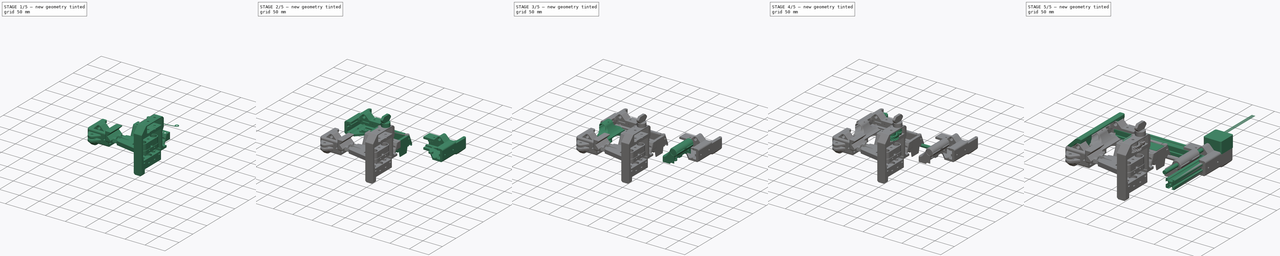
[diagram: build sequence overview — one tinted view per stage of 5, left to right]
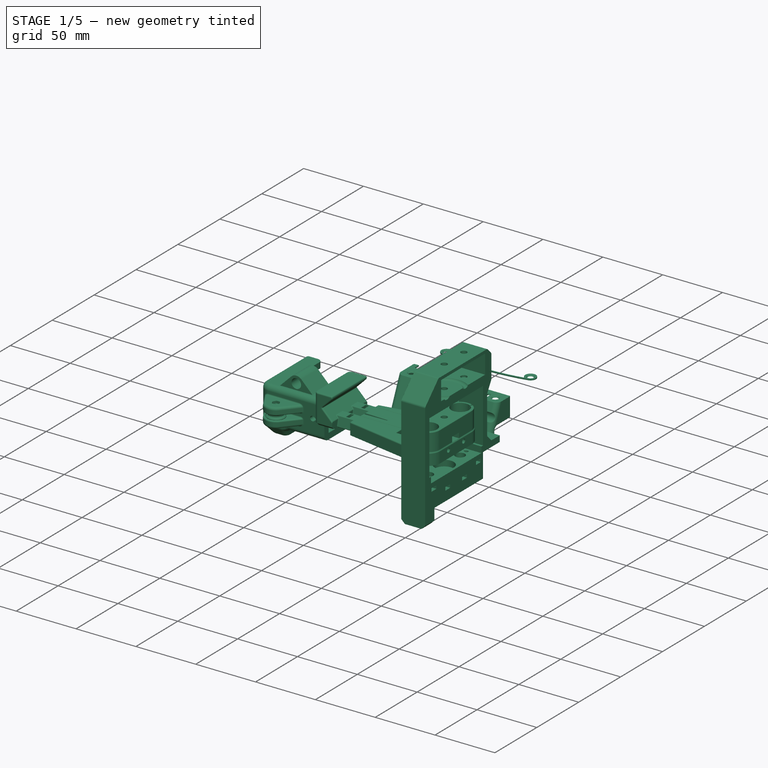
[diagram: stage 1 of 5 — iso view after this stage's code; geometry added in this stage tinted green]
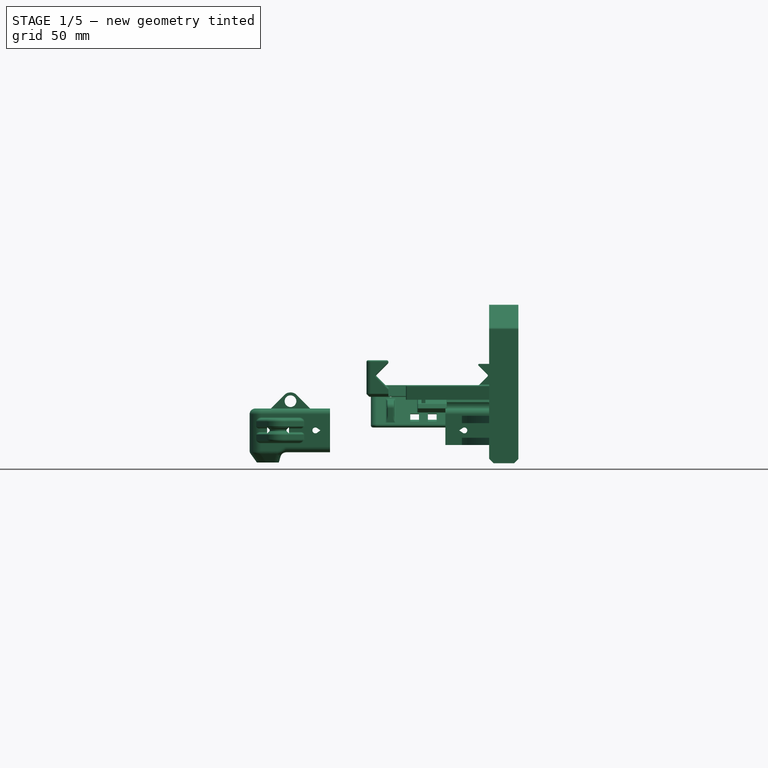
[diagram: stage 1 of 5 — front view after this stage's code; geometry added in this stage tinted green]
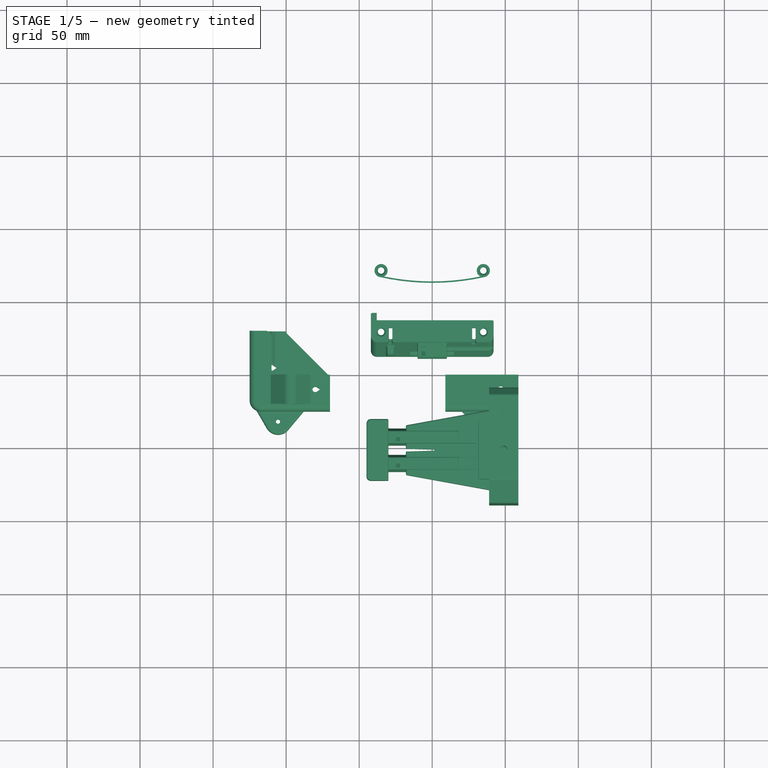
[diagram: stage 1 of 5 — top view after this stage's code; geometry added in this stage tinted green]
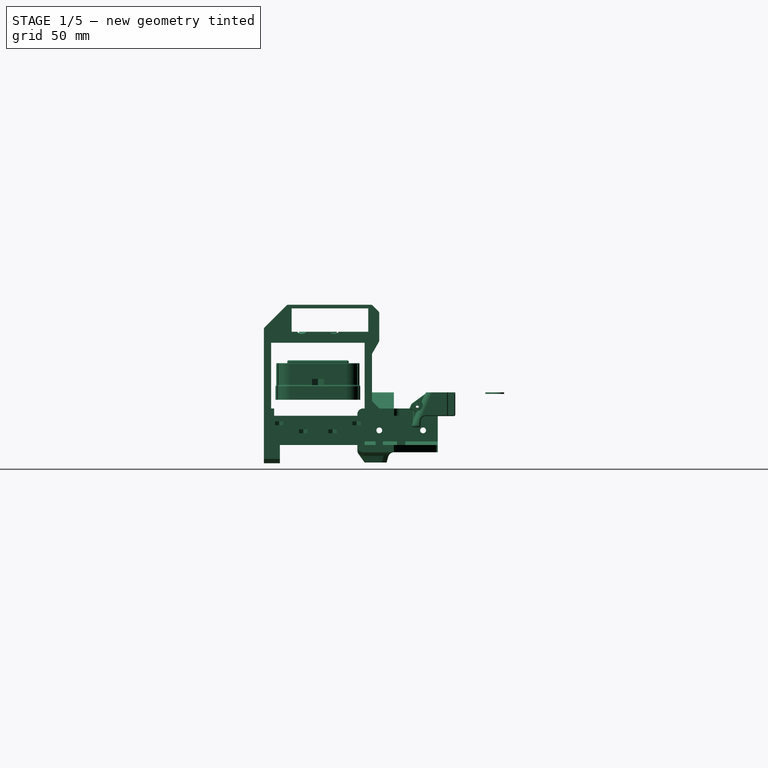
[diagram: stage 1 of 5 — right view after this stage's code; geometry added in this stage tinted green]
FCSTD DOCUMENT  (FreeCAD 0.16RUnknown)
Label: Assembly
License: CreativeCommons Attribution-ShareAlike
LicenseURL: http://creativecommons.org/licenses/by-sa/4.0/
objects: Part::Feature×23, Part::FeaturePython×21, Part::Mirroring×16, App::DocumentObjectGroup×15, Part::Cylinder×7, Part::Compound×2, Sketcher::SketchObject×1, Part::Box×1
note: 71 computed .brp shape members not serialized (recipe doc carries the construction recipe); baked Part::Feature solids carry a one-line shape summary decoded from their .brp

FEATURE [Part::FeaturePython] FrontCorner_01  label="FrontCorner"  # a2plus imported part (geometry in sourceFile) (typed FeaturePython)
  Placement = pos=(110,-82,10) rot=(0,0,1;0rad)
  fixedPosition = false
  sourceFile = ./src/MainFrame/FrontCorner.fcstd
  timeLastImport = 1463741424
  updateColors = true
FEATURE [Part::Mirroring] Part__Mirroring023  label="FrontCorner (Mirror #15)"
  Base = (0,0,0)
  Normal = (1,0,0)
  Source = -> FrontCorner_01
FEATURE [Part::FeaturePython] FrontIdler_01  label="FrontIdler"  # a2plus imported part (geometry in sourceFile) (typed FeaturePython)
  Placement = pos=(105.5,-82,8) rot=(0,0,1;0rad)
  fixedPosition = false
  sourceFile = ./src/MainFrame/FrontIdler.fcstd
  timeLastImport = 1463741424
  updateColors = true
FEATURE [Part::Mirroring] Part__Mirroring024  label="FrontIdler (Mirror #16)"
  Base = (0,0,0)
  Normal = (1,0,0)
  Source = -> FrontIdler_01
FEATURE [App::DocumentObjectGroup] Group006  label="MainFrame_Printed"
  Group = -> [AxisShield_01,Part__Mirroring017,NEMAPulley_01,Part__Mirroring018,LBackCorner_step1_01,RBackCorner_step1_01,Part__Mirroring023,FrontIdler_01,Part__Mirroring024]
FEATURE [Part::FeaturePython] PhoneCarriage_01  label="PhoneCarriage"  # a2plus imported part (geometry in sourceFile) (typed FeaturePython)
  Placement = pos=(49,-102,31) rot=(0,0,1;0rad)
  fixedPosition = false
  sourceFile = ./src/smartphoneHolder/PhoneCarriage.FCStd
  timeLastImport = 1464279098
  updateColors = true
FEATURE [Part::FeaturePython] PhoneGrip_01  label="PhoneGrip"  # a2plus imported part (geometry in sourceFile) (typed FeaturePython)
  Placement = pos=(-30,-102,33) rot=(0,0,1;0rad)
  fixedPosition = false
  sourceFile = ./src/smartphoneHolder/PhoneGrip.fcstd
  timeLastImport = 1464279099
  updateColors = true
FEATURE [Part::FeaturePython] MainStructure_step1_01  label="MainStructure"  # a2plus imported part (geometry in sourceFile) (typed FeaturePython)
  Placement = pos=(59,-60,10) rot=(0,0,1;0rad)
  fixedPosition = false
  sourceFile = ./Step/Printed/SmartphoneHolder/MainStructure.step
  timeLastImport = 1464108916
  updateColors = true
FEATURE [App::DocumentObjectGroup] Group010  label="SmartPh_Printed"
  Group = -> [BigGear_step1_01,SmallGear_step1_01,AdjustWheel_step1_01,PhoneCarriage_01,PhoneGrip_01,MainStructure_step1_01]
FEATURE [App::DocumentObjectGroup] Group009  label="SmartphoneHolder"
  Group = -> [Group010,Group011,Pocket001]
FEATURE [Part::FeaturePython] SampleFix_01  label="SampleFix"  # a2plus imported part (geometry in sourceFile) (typed FeaturePython)
  Placement = pos=(0,0,35) rot=(0,0,1;0rad)
  fixedPosition = false
  sourceFile = ./src/Axes/XCarriage/SampleFix.fcstd
  timeLastImport = 1464108916
  updateColors = true
FEATURE [Part::Feature] Compound018001  label="freaduino-uno"
  Placement = pos=(30,75,0) rot=(0,0.707107,0.707107;3.14159rad)
  shape: bbox 70.58 x 15.28 x 54.65 mm, 4196 faces, 219 solids (baked)
FEATURE [App::DocumentObjectGroup] Group008  label="Electronics"
  Group = -> [Part__Mirroring003,Compound004,Compound018001]
FEATURE [App::DocumentObjectGroup] Group004  label="MainFrame"
  Group = -> [Group005,Group006,Group007,Group008]
FEATURE [Part::FeaturePython] StringTensioner_01  label="StringTensioner"  # a2plus imported part (geometry in sourceFile) (typed FeaturePython)
  Placement = pos=(0,0,36) rot=(0,0,1;3.14159rad)
  fixedPosition = false
  sourceFile = ./src/Axes/XCarriage/StringTensioner.fcstd
  timeLastImport = 1464279145
  updateColors = true
FEATURE [App::DocumentObjectGroup] Group013  label="X_Printed"
  Group = -> [Xcarriage_01,SampleFix_01,StringTensioner_01]
FEATURE [App::DocumentObjectGroup] Group012  label="XCarriage"
  Group = -> [Group013,Group014]
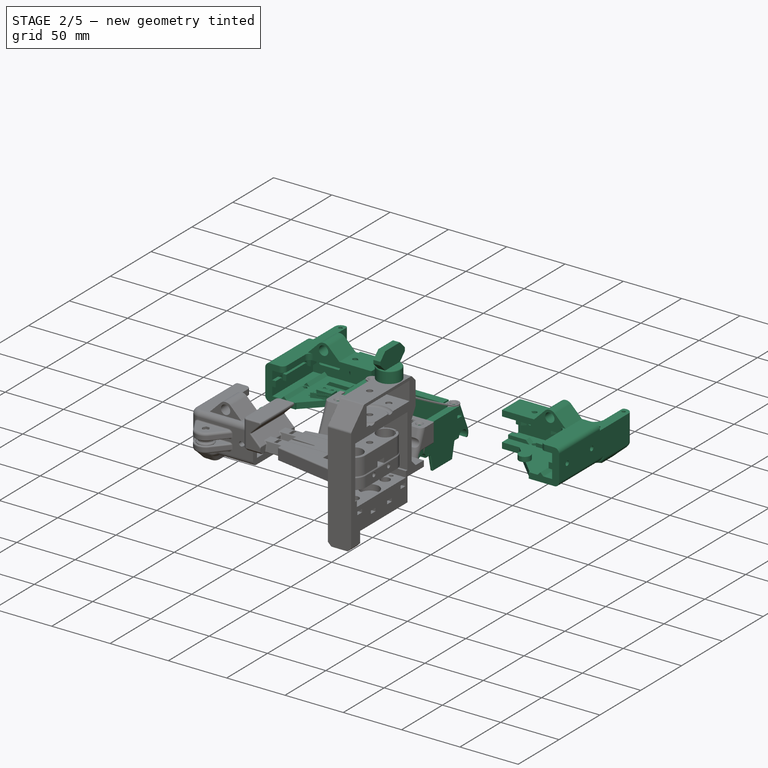
[diagram: stage 2 of 5 — iso view after this stage's code; geometry added in this stage tinted green]
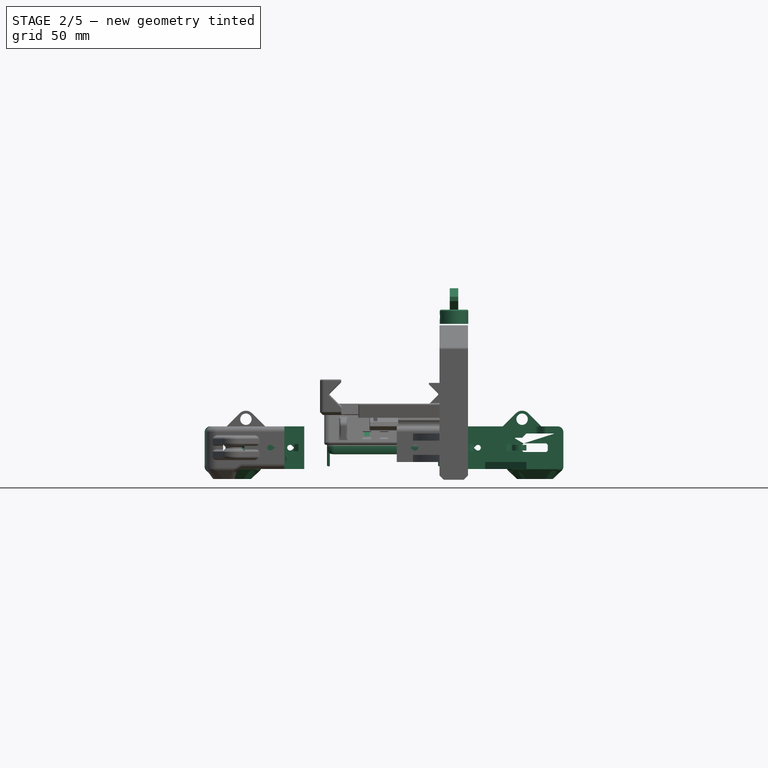
[diagram: stage 2 of 5 — front view after this stage's code; geometry added in this stage tinted green]
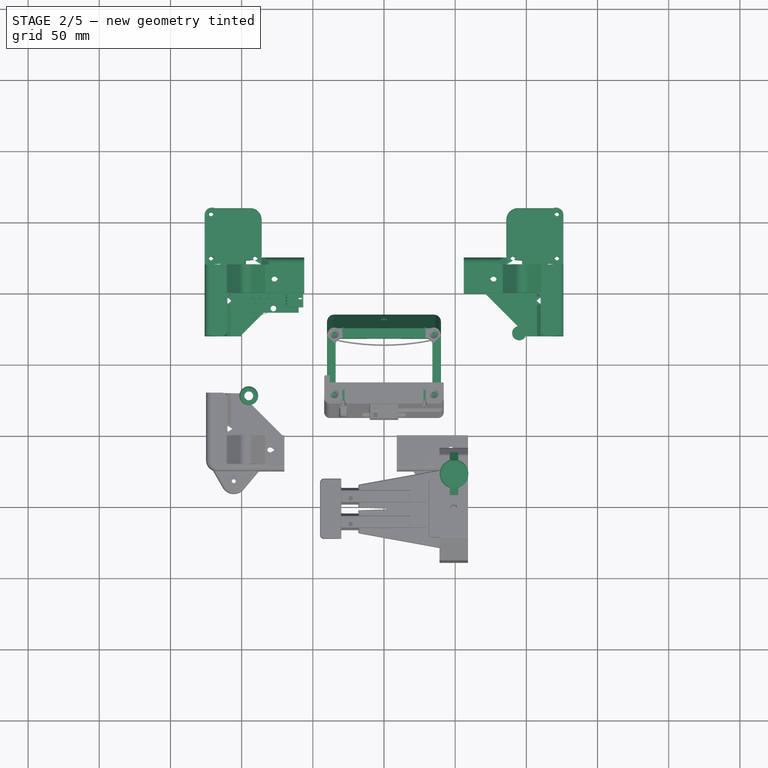
[diagram: stage 2 of 5 — top view after this stage's code; geometry added in this stage tinted green]
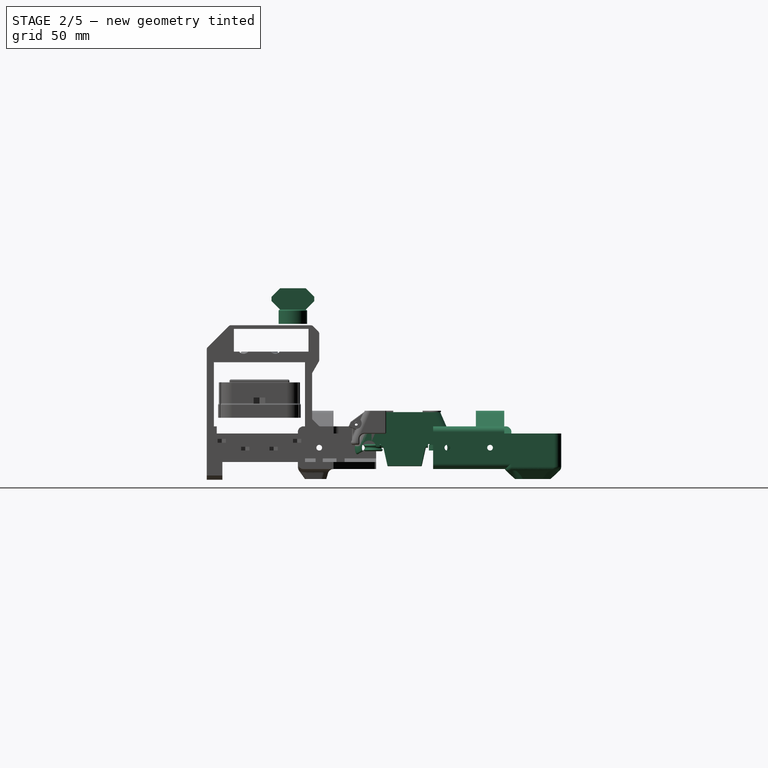
[diagram: stage 2 of 5 — right view after this stage's code; geometry added in this stage tinted green]
FEATURE [Part::Cylinder] Cylinder004  label="623ZZ"
  Angle = 360
  Height = 4
  Placement = pos=(95,22,8) rot=(0,0,1;0rad)
  Radius = 5
FEATURE [App::DocumentObjectGroup] Group007  label="MainFrame_Metal"
  Group = -> [Part__Mirroring001,Part__Mirroring019]
FEATURE [Part::Feature] Part__Feature011  label="Compound013"
  shape: bbox 1.6 x 40 x 16.5 mm, 8 faces (baked)
FEATURE [Part::Feature] Part__Feature012  label="Compound014"
  shape: bbox 2.9 x 1 x 1.2 mm, 8 faces (baked)
FEATURE [Part::Feature] Part__Feature013  label="Compound015"
  shape: bbox 5.75 x 12.9 x 3.155 mm, 39 faces (baked)
FEATURE [Part::Feature] Part__Feature014  label="Compound016"
  shape: bbox 5.7 x 12.9 x 6 mm, 37 faces (baked)
FEATURE [Part::Feature] Part__Feature015  label="Compound017"
  shape: bbox 8.5 x 12.3 x 9.5 mm, 136 faces (baked)
FEATURE [Part::Feature] Part__Feature016  label="Compound018"
  shape: bbox 6.4 x 0.64 x 4.5 mm, 22 faces (baked)
FEATURE [Part::Feature] Part__Feature017  label="Compound019"
  shape: bbox 6.4 x 0.64 x 4.5 mm, 22 faces (baked)
FEATURE [Part::Feature] Part__Feature018  label="Compound020"
  shape: bbox 4 x 13.59 x 6.333 mm, 26 faces (baked)
FEATURE [Part::Feature] Part__Feature019  label="Compound021"
  shape: bbox 6.4 x 0.64 x 4.5 mm, 22 faces (baked)
FEATURE [Part::Compound] Compound004  label="yEndstop"
  Links = -> [Part__Feature019,Part__Feature014,Part__Feature012,Part__Feature016,Part__Feature015,Part__Feature011,Part__Feature013,Part__Feature017,Part__Feature018]
  Placement = pos=(-60,53,0) rot=(0.57735,0.57735,-0.57735;2.0944rad)
FEATURE [Part::FeaturePython] MiniIdler_01  label="MiniIdler"  # a2plus imported part (geometry in sourceFile) (typed FeaturePython)
  Placement = pos=(95,-22,10) rot=(0,0,1;0rad)
  fixedPosition = false
  sourceFile = ./src/Axes/MiniIdler.fcstd
  timeLastImport = 1462803840
  updateColors = true
FEATURE [Part::Mirroring] Part__Mirroring020  label="MiniIdler (Mirror #13)"
  Base = (0,0,0)
  Normal = (0,1,0)
  Source = -> MiniIdler_01
FEATURE [Part::Mirroring] Part__Mirroring021  label="MiniIdler (Mirror #14)"
  Base = (0,0,0)
  Normal = (1,0,0)
  Source = -> Part__Mirroring020
FEATURE [Part::Mirroring] Part__Mirroring022  label="MiniIdler (Mirror #15)"
  Base = (0,0,0)
  Normal = (0,1,0)
  Source = -> Part__Mirroring021
FEATURE [App::DocumentObjectGroup] Group016  label="Y_Printed"
  Group = -> [LYcarriage_step1_01,RYcarriage_step1_01,Part__Mirroring022]
FEATURE [App::DocumentObjectGroup] Group015  label="YCarriage"
  Group = -> [Group016,Group017,Compound002]
FEATURE [Part::FeaturePython] AdjustWheel_step1_01  label="AdjustWheel"  # a2plus imported part (geometry in sourceFile) (typed FeaturePython)
  Placement = pos=(89,-76,-7) rot=(0,0,1;3.14159rad)
  fixedPosition = false
  sourceFile = ./Step/Printed/SmartphoneHolder/AdjustWheel.step
  timeLastImport = 1461879506
  updateColors = true
FEATURE [Part::Feature] Pocket001  label="Phone"
  Placement = pos=(35,10,43) rot=(0,0,1;0rad)
  shape: bbox 70 x 145 x 9 mm, 33 faces (baked)
FEATURE [Part::FeaturePython] Xcarriage_01  label="Xcarriage"  # a2plus imported part (geometry in sourceFile) (typed FeaturePython)
  Placement = pos=(0,0,35) rot=(0,0,1;0rad)
  fixedPosition = false
  sourceFile = ./src/Axes/XCarriage/Xcarriage.fcstd
  timeLastImport = 1463741424
  updateColors = true
FEATURE [Part::FeaturePython] LBackCorner_step1_01  label="LBackCorner"  # a2plus imported part (geometry in sourceFile) (typed FeaturePython)
  Placement = pos=(-106,90,20) rot=(0,0,1;0rad)
  fixedPosition = true
  sourceFile = ./Step/Printed/MainFrame/LBackCorner.step
  timeLastImport = 1463741424
  updateColors = true
FEATURE [Part::FeaturePython] RBackCorner_step1_01  label="RBackCorner"  # a2plus imported part (geometry in sourceFile) (typed FeaturePython)
  Placement = pos=(106,90,20) rot=(0,0,1;0rad)
  fixedPosition = false
  sourceFile = ./Step/Printed/MainFrame/RBackCorner.step
  timeLastImport = 1463741424
  updateColors = true
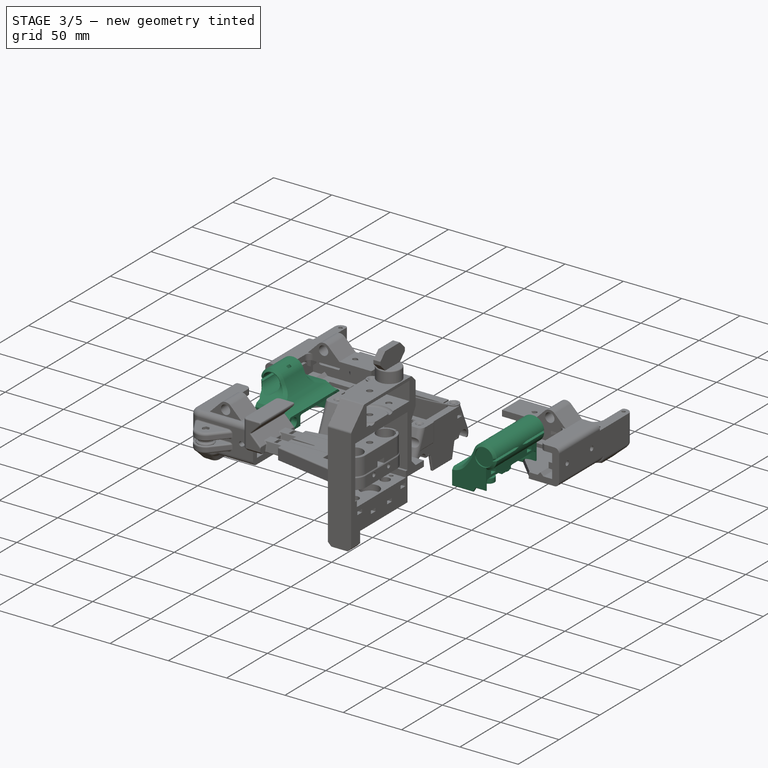
[diagram: stage 3 of 5 — iso view after this stage's code; geometry added in this stage tinted green]
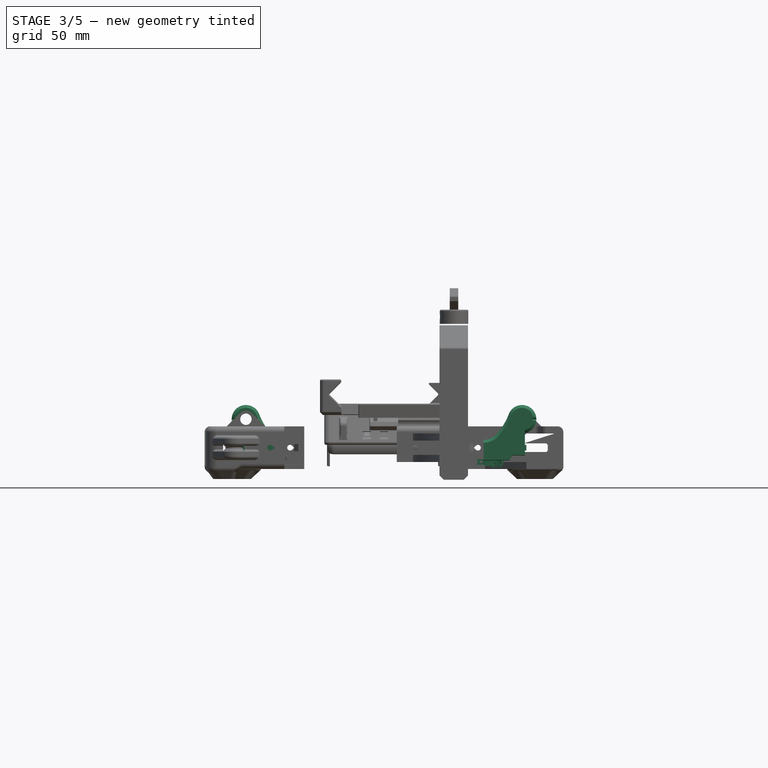
[diagram: stage 3 of 5 — front view after this stage's code; geometry added in this stage tinted green]
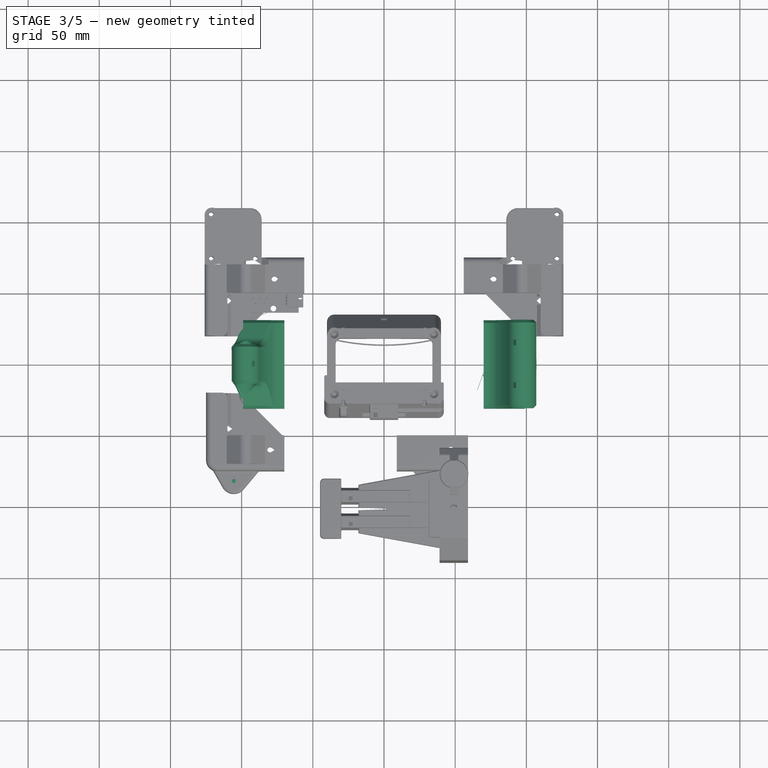
[diagram: stage 3 of 5 — top view after this stage's code; geometry added in this stage tinted green]
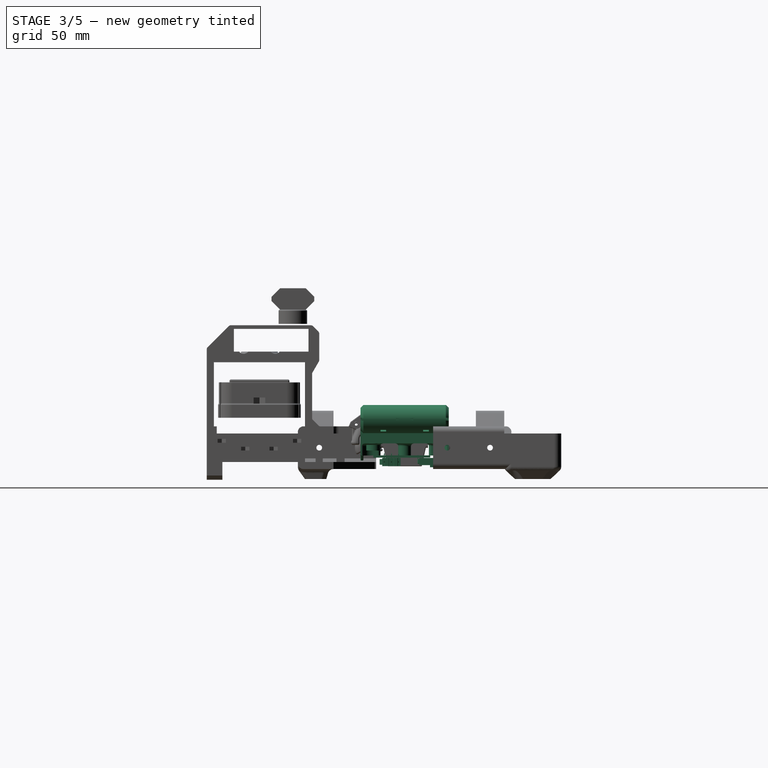
[diagram: stage 3 of 5 — right view after this stage's code; geometry added in this stage tinted green]
FEATURE [Part::Cylinder] Cylinder003  label="LM8UU001"
  Angle = 360
  Height = 24
  Placement = pos=(-97,12,30) rot=(1,0,0;1.5708rad)
  Radius = 7.5
FEATURE [Part::Mirroring] Part__Mirroring011  label="623ZZ (Mirror #11)"
  Base = (0,0,0)
  Normal = (0,1,0)
  Source = -> Cylinder004
FEATURE [App::DocumentObjectGroup] Group011  label="SmartPh_Metal"
FEATURE [App::DocumentObjectGroup] Group014  label="X_Metal"
  Group = -> [Cylinder002,Cylinder005,Cylinder006]
FEATURE [Part::FeaturePython] LYcarriage_step1_01  label="LYcarriage"  # a2plus imported part (geometry in sourceFile) (typed FeaturePython)
  Placement = pos=(70,0,10) rot=(0,0,1;0rad)
  fixedPosition = false
  sourceFile = ./Step/Printed/Axes/LYcarriage.step
  timeLastImport = 1464108916
  updateColors = true
FEATURE [Part::FeaturePython] RYcarriage_step1_01  label="RYcarriage"  # a2plus imported part (geometry in sourceFile) (typed FeaturePython)
  Placement = pos=(-70,0,10) rot=(0,0,1;0rad)
  fixedPosition = false
  sourceFile = ./Step/Printed/Axes/RYcarriage.step
  timeLastImport = 1464108916
  updateColors = true
FEATURE [Part::FeaturePython] Clone008  label="Clone of LM8UU001"  # Draft clone (typed FeaturePython)
  Objects = -> [Cylinder003]
  Placement = pos=(97,-6,30) rot=(1,0,0;1.5708rad)
  Scale = (1,1,1)
FEATURE [Part::FeaturePython] Clone009  label="Clone of LM8UU004"  # Draft clone (typed FeaturePython)
  Objects = -> [Cylinder003]
  Placement = pos=(97,30,30) rot=(1,0,0;1.5708rad)
  Scale = (1,1,1)
FEATURE [App::DocumentObjectGroup] Group017  label="Y_Metal"
  Group = -> [Cylinder003,Clone008,Clone009,Part__Mirroring008,Part__Mirroring013,Part__Mirroring015]
FEATURE [Part::Feature] Part__Feature  label="Compound001"
  shape: bbox 1.6 x 40 x 16.5 mm, 8 faces (baked)
FEATURE [Part::Feature] Part__Feature003  label="Compound006"
  shape: bbox 2.9 x 1 x 1.2 mm, 8 faces (baked)
FEATURE [Part::Feature] Part__Feature004  label="Compound003"
  shape: bbox 5.75 x 12.9 x 3.155 mm, 39 faces (baked)
FEATURE [Part::Feature] Part__Feature005  label="Compound007"
  shape: bbox 5.7 x 12.9 x 6 mm, 37 faces (baked)
FEATURE [Part::Feature] Part__Feature006  label="Compound008"
  shape: bbox 8.5 x 12.3 x 9.5 mm, 136 faces (baked)
FEATURE [Part::Feature] Part__Feature007  label="Compound009"
  shape: bbox 6.4 x 0.64 x 4.5 mm, 22 faces (baked)
FEATURE [Part::Feature] Part__Feature008  label="Compound010"
  shape: bbox 6.4 x 0.64 x 4.5 mm, 22 faces (baked)
FEATURE [Part::Feature] Part__Feature009  label="Compound011"
  shape: bbox 4 x 13.59 x 6.333 mm, 26 faces (baked)
FEATURE [Part::Feature] Part__Feature010  label="Compound012"
  shape: bbox 6.4 x 0.64 x 4.5 mm, 22 faces (baked)
FEATURE [Part::Compound] Compound002  label="xEndstop"
  Links = -> [Part__Feature,Part__Feature009,Part__Feature005,Part__Feature007,Part__Feature010,Part__Feature004,Part__Feature006,Part__Feature003,Part__Feature008]
  Placement = pos=(87,18,3) rot=(0,-1,0;1.5708rad)
FEATURE [Part::FeaturePython] Clone018  label="Idler623ZZ"  # Draft clone (typed FeaturePython)
  Objects = -> [Cylinder004]
  Placement = pos=(105.5,-82,8) rot=(0,0,1;0rad)
  Scale = (1,1,1)
FEATURE [Part::Mirroring] Part__Mirroring019  label="Idler623ZZ (Mirror #12)"
  Base = (0,0,0)
  Normal = (1,0,0)
  Source = -> Clone018
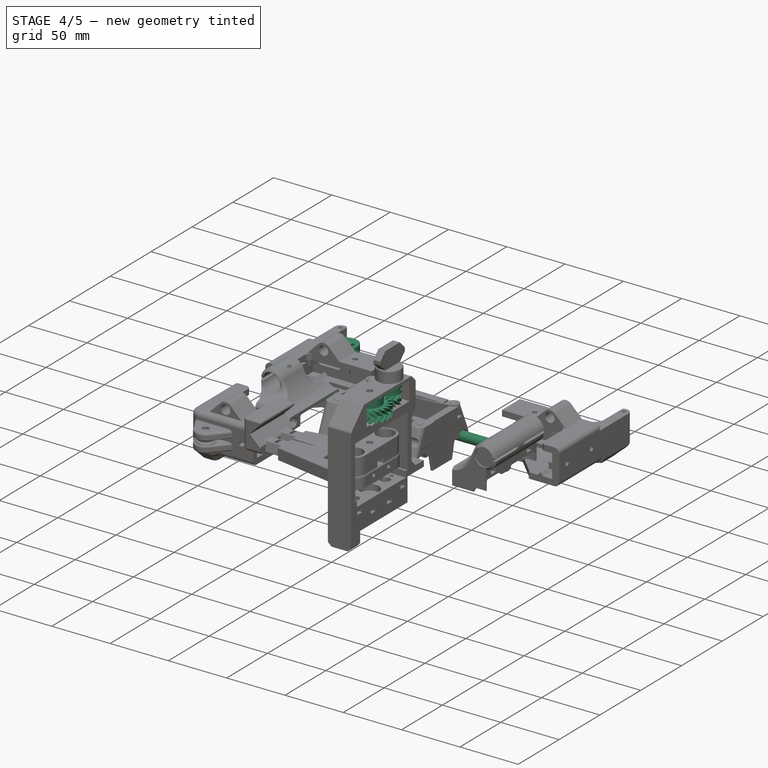
[diagram: stage 4 of 5 — iso view after this stage's code; geometry added in this stage tinted green]
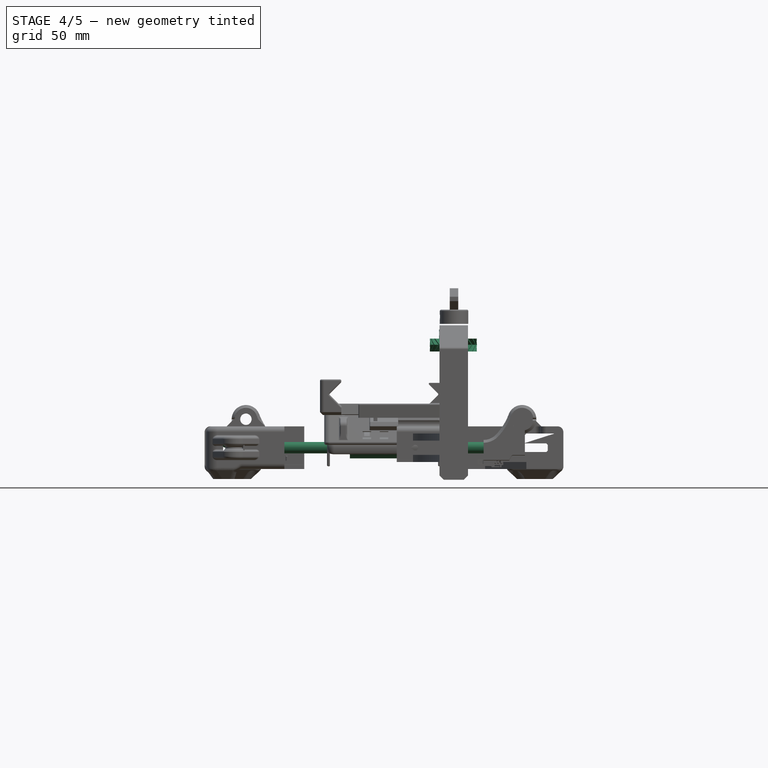
[diagram: stage 4 of 5 — front view after this stage's code; geometry added in this stage tinted green]
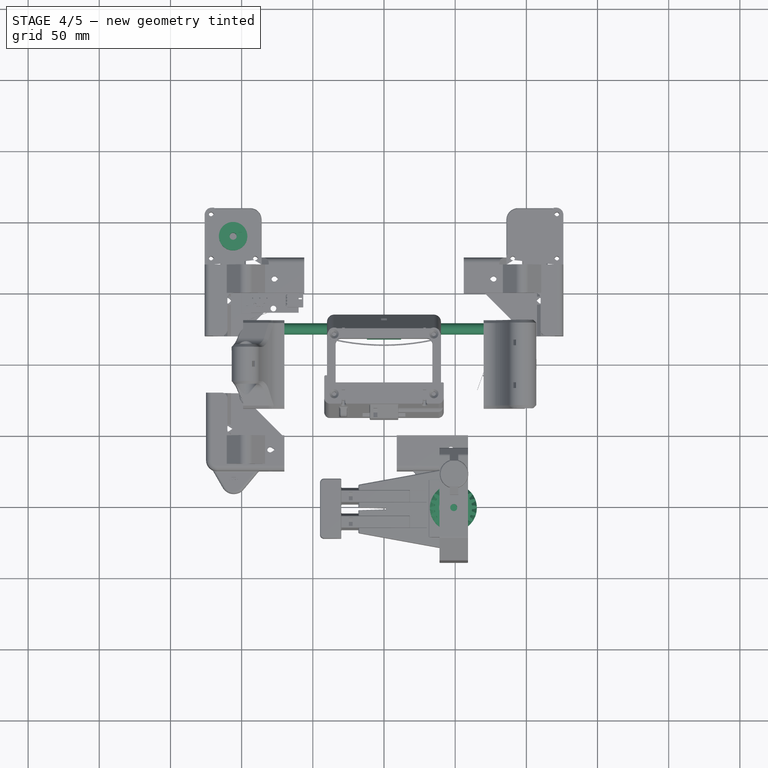
[diagram: stage 4 of 5 — top view after this stage's code; geometry added in this stage tinted green]
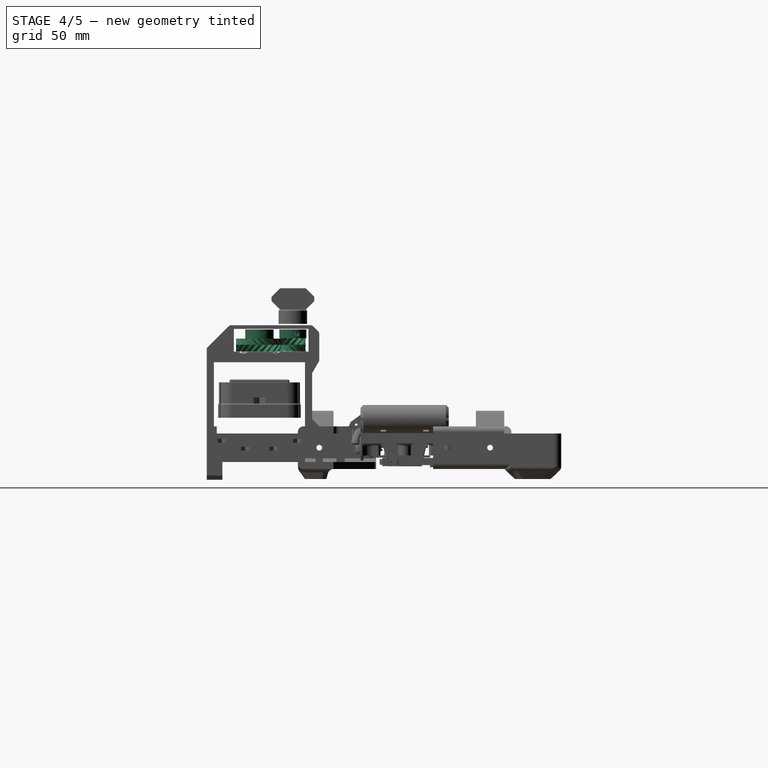
[diagram: stage 4 of 5 — right view after this stage's code; geometry added in this stage tinted green]
FEATURE [Part::Feature] Fillet002  label="T slot extrusion 20x20x200.001"
  Placement = pos=(-100,-70,0) rot=(0,-1,0;1.5708rad)
  shape: bbox 200 x 20 x 20 mm, 51 faces (baked)
FEATURE [Part::Feature] Fillet001001  label="T slot extrusion 20x20x140.001"
  Placement = pos=(-120,-70,0) rot=(1,0,0;1.5708rad)
  shape: bbox 20 x 140 x 20 mm, 51 faces (baked)
FEATURE [Part::Cylinder] Cylinder001  label="XBar"
  Angle = 360
  Height = 172
  Placement = pos=(-86,-25,10) rot=(0,1,0;1.5708rad)
  Radius = 4
FEATURE [Part::Cylinder] Cylinder002  label="LM8UU"
  Angle = 360
  Height = 24
  Placement = pos=(-24,-25,10) rot=(0,1,0;1.5708rad)
  Radius = 7.5
FEATURE [Part::Mirroring] Part__Mirroring008  label="XBar (Mirror #9)"
  Base = (0,0,0)
  Normal = (0,1,0)
  Source = -> Cylinder001
FEATURE [Part::Cylinder] Cylinder005  label="LM8UU002"
  Angle = 360
  Height = 24
  Placement = pos=(0,-25,10) rot=(0,1,0;1.5708rad)
  Radius = 7.5
FEATURE [Part::Cylinder] Cylinder006  label="LM8UU003"
  Angle = 360
  Height = 24
  Placement = pos=(-12,25,10) rot=(0,1,0;1.5708rad)
  Radius = 7.5
FEATURE [Part::Mirroring] Part__Mirroring013  label="623ZZ (Mirror #13)"
  Base = (0,0,0)
  Normal = (1,0,0)
  Source = -> Cylinder004
FEATURE [Part::Mirroring] Part__Mirroring015  label="623ZZ (Mirror #15)"
  Base = (0,0,0)
  Normal = (1,0,0)
  Source = -> Part__Mirroring011
FEATURE [Part::FeaturePython] NEMAPulley_01  label="NEMAPulley"  # a2plus imported part (geometry in sourceFile) (typed FeaturePython)
  Placement = pos=(-106,90,18) rot=(1,0,0;3.14159rad)
  fixedPosition = false
  sourceFile = ./src/MainFrame/NEMAPulley.fcstd
  timeLastImport = 1463741424
  updateColors = true
FEATURE [Part::FeaturePython] BigGear_step1_01  label="BigGear"  # a2plus imported part (geometry in sourceFile) (typed FeaturePython)
  Placement = pos=(88.5,-123,-5.5) rot=(0,0,1;3.14159rad)
  fixedPosition = false
  sourceFile = ./Step/Printed/SmartphoneHolder/BigGear.step
  timeLastImport = 1461091168
  updateColors = true
FEATURE [Part::FeaturePython] SmallGear_step1_01  label="SmallGear"  # a2plus imported part (geometry in sourceFile) (typed FeaturePython)
  Placement = pos=(88.5,-76,-5.5) rot=(0,0,1;3.14159rad)
  fixedPosition = false
  sourceFile = ./Step/Printed/SmartphoneHolder/SmallGear.step
  timeLastImport = 1461091168
  updateColors = true
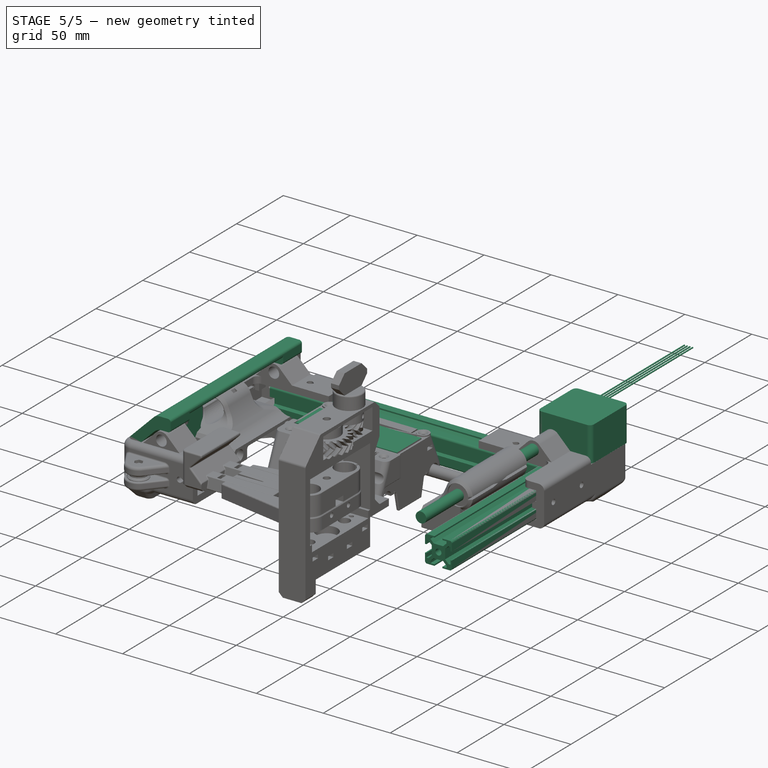
[diagram: stage 5 of 5 — iso view after this stage's code; geometry added in this stage tinted green]
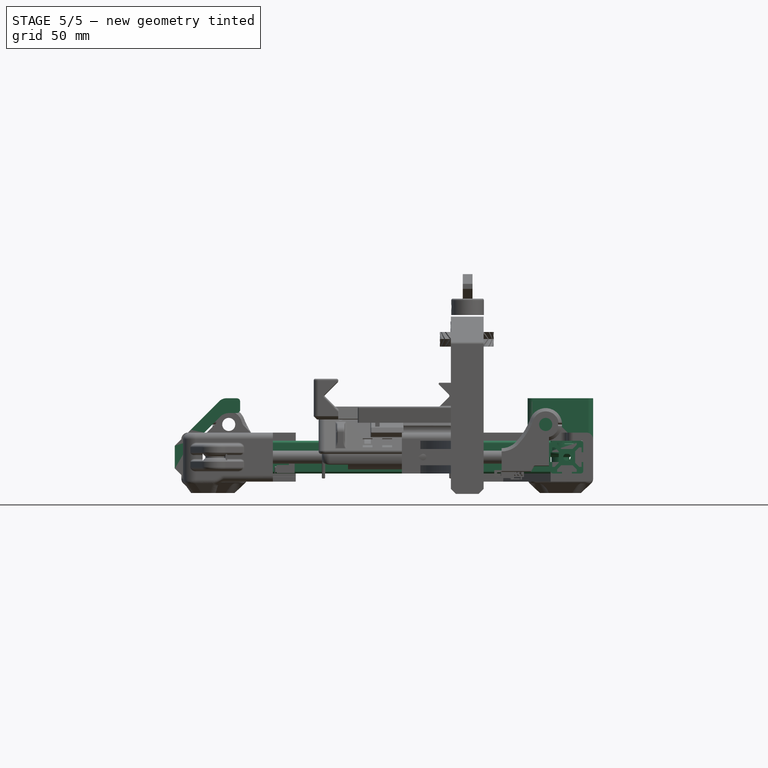
[diagram: stage 5 of 5 — front view after this stage's code; geometry added in this stage tinted green]
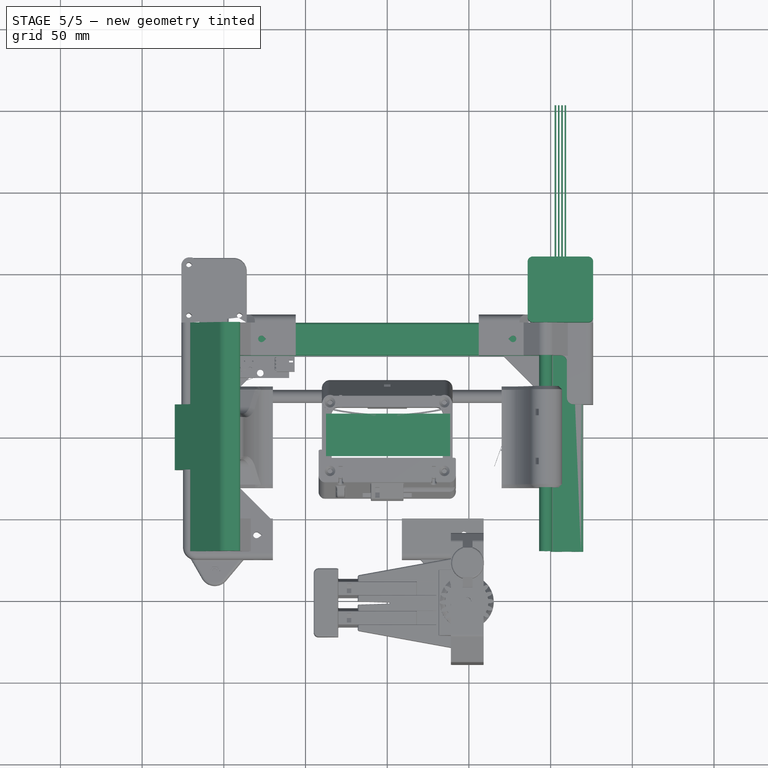
[diagram: stage 5 of 5 — top view after this stage's code; geometry added in this stage tinted green]
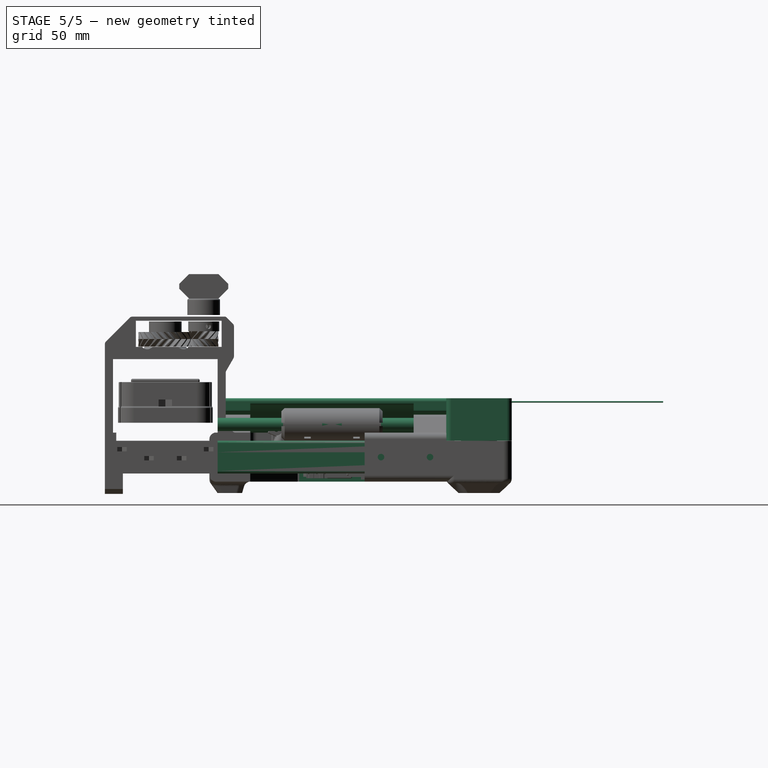
[diagram: stage 5 of 5 — right view after this stage's code; geometry added in this stage tinted green]
FEATURE [Part::Cylinder] Cylinder  label="YBar"
  Angle = 360
  Height = 140
  Placement = pos=(-97,70,30) rot=(1,0,0;1.5708rad)
  Radius = 4
FEATURE [Sketcher::SketchObject] Sketch  label="StringPath"
  Placement = pos=(0,0,10) rot=(0,0,1;0rad)
  sketch-geometry (18):
    g0: ArcOfCircle CenterX=-106 CenterY=90 CenterZ=0 NormalX=0 NormalY=0 NormalZ=1 Radius=5.5 StartAngle=6.27583 EndAngle=9.42478
    g1: ArcOfCircle CenterX=106 CenterY=90 CenterZ=0 NormalX=0 NormalY=0 NormalZ=1 Radius=5.5 StartAngle=8.0041e-08 EndAngle=3.17907
    g2: ArcOfCircle CenterX=105.5 CenterY=-82 CenterZ=0 NormalX=0 NormalY=0 NormalZ=1 Radius=6 StartAngle=3.09595 EndAngle=6.28319
    g3: ArcOfCircle CenterX=95 CenterY=-22 CenterZ=0 NormalX=0 NormalY=0 NormalZ=1 Radius=6 StartAngle=6.25815 EndAngle=7.85398
    g4: ArcOfCircle CenterX=95 CenterY=22 CenterZ=0 NormalX=0 NormalY=0 NormalZ=1 Radius=6 StartAngle=4.71239 EndAngle=6.29051
    g5: ArcOfCircle CenterX=-95 CenterY=22 CenterZ=0 NormalX=0 NormalY=0 NormalZ=1 Radius=6 StartAngle=3.13423 EndAngle=4.71239
    g6: ArcOfCircle CenterX=-95 CenterY=-22 CenterZ=0 NormalX=0 NormalY=0 NormalZ=1 Radius=6 StartAngle=1.5708 EndAngle=3.16664
    g7: ArcOfCircle CenterX=-105.5 CenterY=-82 CenterZ=0 NormalX=0 NormalY=0 NormalZ=1 Radius=6 StartAngle=3.14159 EndAngle=6.30824
    g8: LineSegment StartX=-111.5 StartY=90 StartZ=0 EndX=-111.5 EndY=-82 EndZ=0
    g9: LineSegment StartX=-100.998 StartY=-22.1503 StartZ=0 EndX=-99.5019 EndY=-81.8497 EndZ=0
    g10: LineSegment StartX=-95 StartY=-16 StartZ=0 EndX=95 EndY=-16 EndZ=0
    g11: LineSegment StartX=-100.5 StartY=89.9595 StartZ=0 EndX=-101 EndY=22.0442 EndZ=0
    g12: LineSegment StartX=100.504 StartY=89.7939 StartZ=0 EndX=101 EndY=22.0439 EndZ=0
    g13: LineSegment StartX=111.5 StartY=90 StartZ=0 EndX=111.5 EndY=-82 EndZ=0
    g14: LineSegment StartX=99.5062 StartY=-81.7262 StartZ=0 EndX=100.998 EndY=-22.1502 EndZ=0
    g15: LineSegment StartX=-95 StartY=16 StartZ=0 EndX=-21.9915 EndY=16 EndZ=0
    g16: LineSegment StartX=25.9262 StartY=16 StartZ=0 EndX=95 EndY=16 EndZ=0
    g17: LineSegment [constr] StartX=-59.6823 StartY=0 StartZ=0 EndX=-14.2958 EndY=0 EndZ=0
  constraints (52):
    c: Symmetric(g0,g1,g-2)
    c: Symmetric(g2,g7,g-2)
    c: Equal(g7,g2)
    c: Symmetric(g6,g3,g-2)
    c: Symmetric(g5,g4,g-2)
    c: DistanceY(g1) = 90
    c: DistanceY(g2) = -82
    c: Coincident(g13,g1)
    c: Coincident(g13,g2)
    c: Coincident(g14,g2)
    c: Coincident(g14,g3)
    c: Coincident(g3,g10)
    c: Coincident(g4,g12)
    c: Coincident(g6,g10)
    c: Coincident(g6,g9)
    c: Coincident(g7,g9)
    c: Coincident(g7,g8)
    c: Coincident(g8,g0)
    c: Coincident(g11,g0)
    c: Coincident(g12,g1)
    c: Coincident(g5,g11)
    c: Coincident(g16,g4)
    c: Coincident(g15,g5)
    c: Horizontal(g15)
    c: Horizontal(g16)
    c: PointOnObject(g15,g16)
    c: Tangent(g5,g15)
    c: Tangent(g11,g0)
    c: Tangent(g9,g7)
    c: Tangent(g9,g6)
    c: Tangent(g10,g3)
    c: Tangent(g16,g4)
    c: Equal(g6,g5)
    c: Tangent(g1,g13)
    c: Tangent(g8,g0)
    c: Radius(g4) = 6
    c: Radius(g2) = 6
    c: Tangent(g4,g12)
    c: DistanceX(g5) = -95
    c: Tangent(g10,g6)
    c: Tangent(g14,g3)
    c: Radius(g3) = 6
    c: Equal(g0,g1)
    c: Vertical(g8)
    c: Vertical(g13)
    c: Radius(g0) = 5.5
    c: DistanceX(g0) = -106
    c: Tangent(g5,g11)
    c: DistanceY(g6,g5) = 44
    c: Horizontal(g17)
    c: Symmetric(g5,g6,g17)
    c: PointOnObject(g17,g-1)
FEATURE [Part::Feature] Part__Feature002  label="4018X SNGL"
  Placement = pos=(-106,90,46) rot=(0,1,0;3.14159rad)
  shape: bbox 40.13 x 132.8 x 41.15 mm, 30 faces (baked)
FEATURE [Part::Mirroring] Part__Mirroring  label="T slot extrusion 20x20x140.001 (Mirror #1)"
  Base = (0,0,0)
  Normal = (1,0,0)
  Source = -> Fillet001001
FEATURE [Part::Mirroring] Part__Mirroring001  label="YBar (Mirror #2)"
  Base = (0,0,0)
  Normal = (1,0,0)
  Source = -> Cylinder
FEATURE [Part::Mirroring] Part__Mirroring003  label="4018X SNGL (Mirror #4)"
  Base = (0,0,0)
  Normal = (1,0,0)
  Source = -> Part__Feature002
FEATURE [Part::Mirroring] Part__Mirroring007  label="T slot extrusion 20x20x200.001 (Mirror #8)"
  Base = (0,0,0)
  Normal = (0,1,0)
  Source = -> Fillet002
FEATURE [Part::Box] Box001  label="SampleMaster"
  Height = 1
  Length = 26
  Placement = pos=(38.5,-12,35) rot=(0,0,1;1.5708rad)
  Width = 76
FEATURE [App::DocumentObjectGroup] Group001  label="Non-printed parts"
  Group = -> [Box001,Sketch]
FEATURE [App::DocumentObjectGroup] Group005  label="Profiles"
  Group = -> [Part__Mirroring007,Part__Mirroring]
FEATURE [Part::FeaturePython] AxisShield_01  label="AxisShield"  # a2plus imported part (geometry in sourceFile) (typed FeaturePython)
  Placement = pos=(120,0,10) rot=(0,0,1;0rad)
  fixedPosition = false
  sourceFile = ./src/MainFrame/AxisShield.fcstd
  timeLastImport = 1461091168
  updateColors = true
FEATURE [Part::Mirroring] Part__Mirroring017  label="AxisShield (Mirror #11)"
  Base = (0,0,0)
  Normal = (1,0,0)
  Source = -> AxisShield_01
FEATURE [Part::Mirroring] Part__Mirroring018  label="NEMAPulley (Mirror #12)"
  Base = (0,0,0)
  Normal = (1,0,0)
  Source = -> NEMAPulley_01
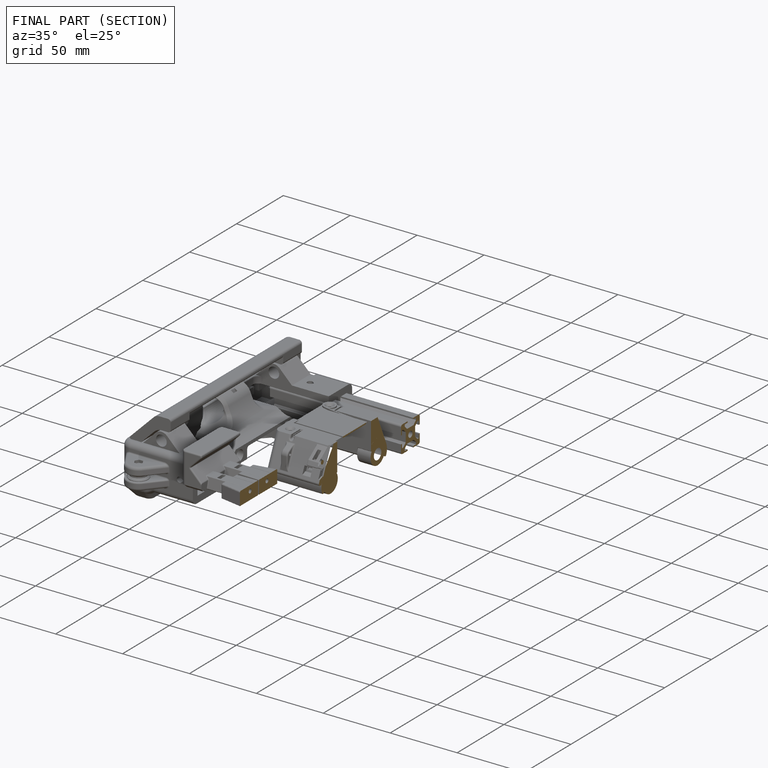
[diagram: finished part — half-section view (interior)]
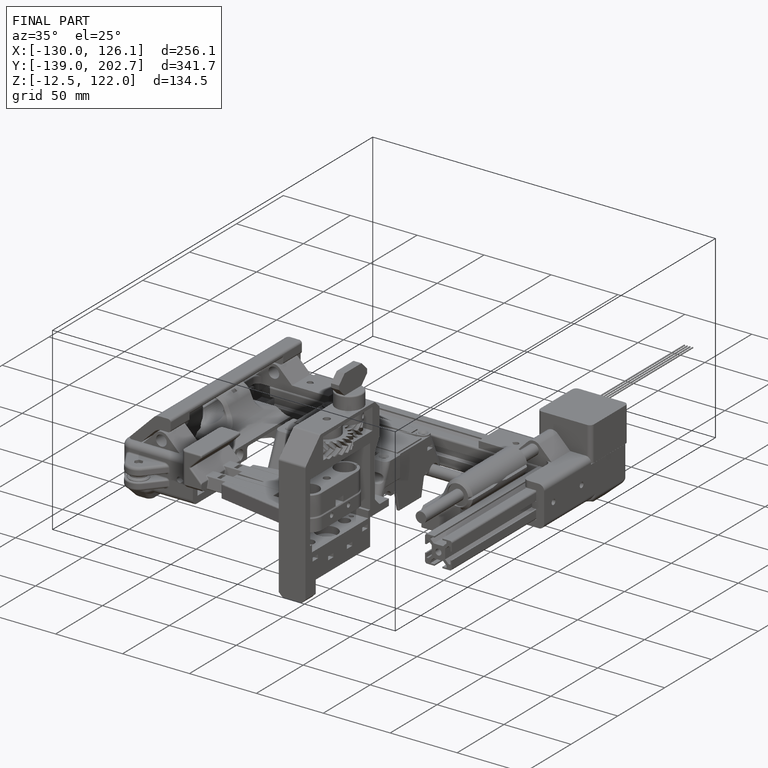
[diagram: finished part — iso view with bounding-box wireframe]
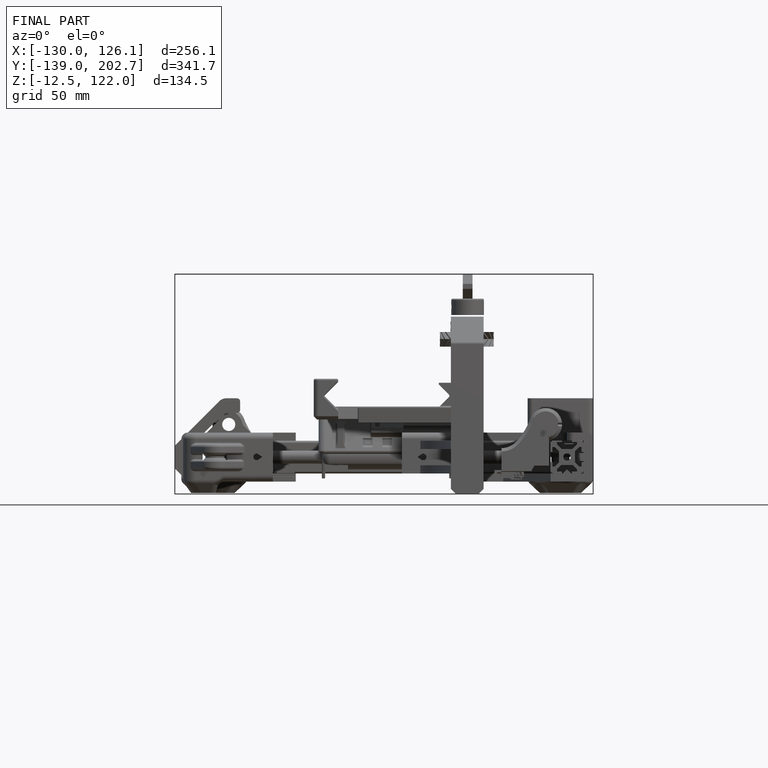
[diagram: finished part — front view with bounding-box wireframe]
